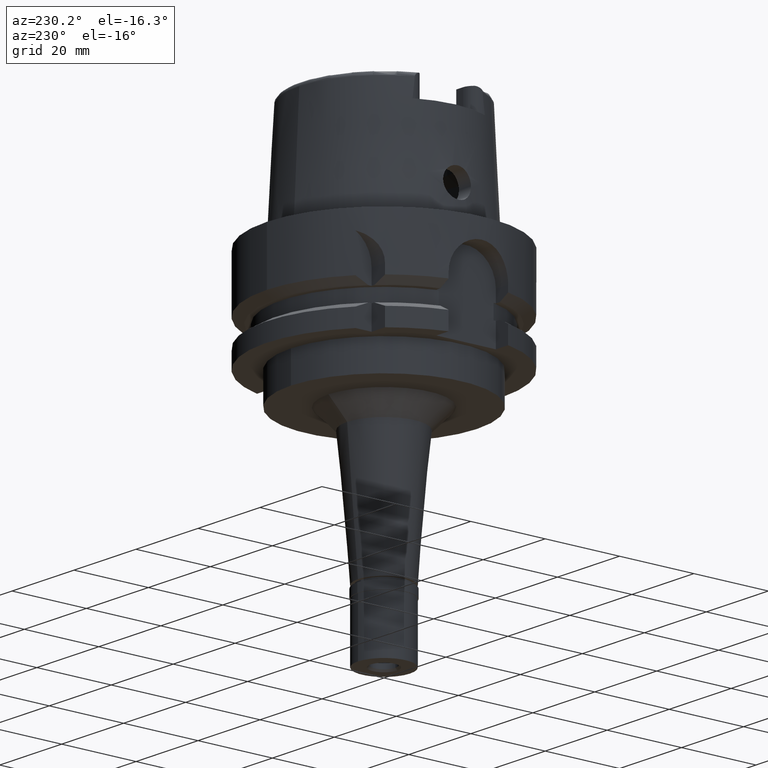
[diagram: clean part render]
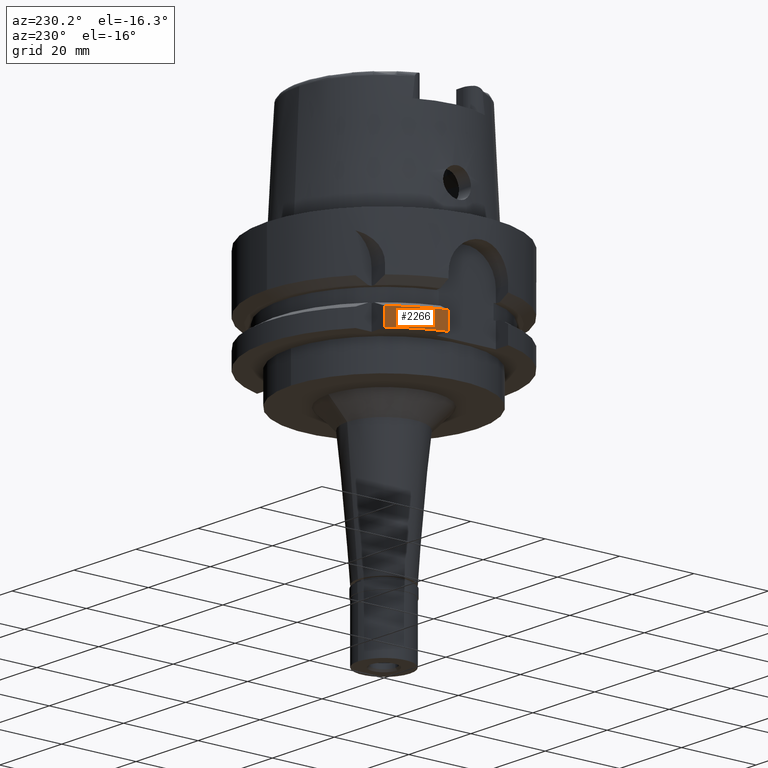
[diagram: same view with one face highlighted and labeled with its STEP entity id]
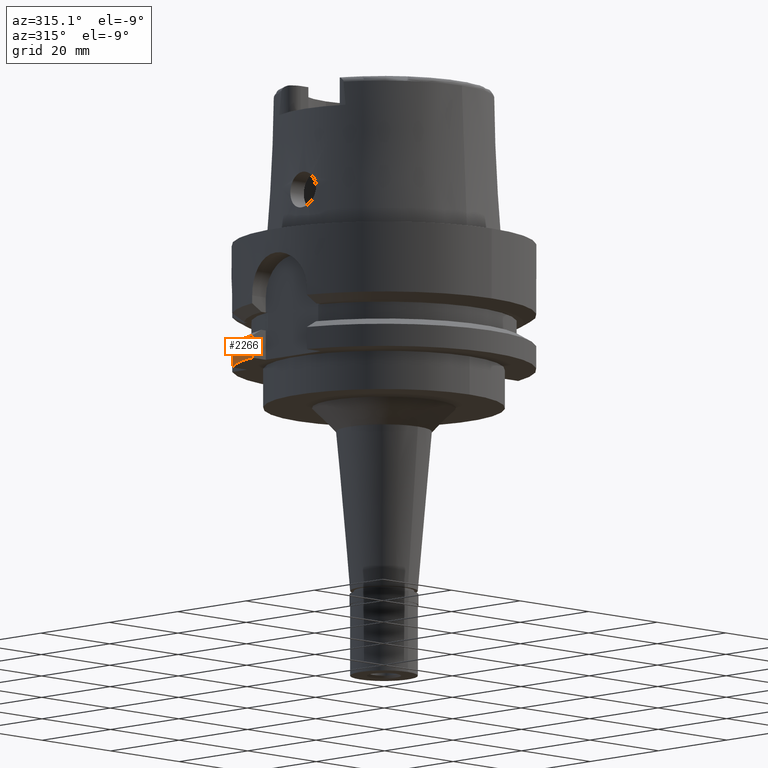
[diagram: same view with one face highlighted and labeled with its STEP entity id]
A machine part, auxiliary view. The second image highlights one B-rep face of the part: STEP entity #2266.
A second angle (auxiliary view) of the same face is appended — the face is thin or edge-on in the first view.
In plain terms, the highlighted cylindrical surface (partial cylindrical patch) has radius 31.5 mm, axis along (0, 0, -1).
Its self-contained STEP definition (entity closure, byte-faithful):
#27 = CIRCLE ( 'NONE', #5524, 31.50000000000000000 ) ;
#38 = EDGE_CURVE ( 'NONE', #5294, #4621, #27, .T. ) ;
#184 = DIRECTION ( 'NONE',  ( 0.0000000000000000000, 0.0000000000000000000, -1.000000000000000000 ) ) ;
#529 = ORIENTED_EDGE ( 'NONE', *, *, #1025, .F. ) ;
#735 = CARTESIAN_POINT ( 'NONE',  ( 0.0000000000000000000, 0.0000000000000000000, 37.90000000000000568 ) ) ;
#1025 = EDGE_CURVE ( 'NONE', #2553, #4621, #2718, .T. ) ;
#1040 = DIRECTION ( 'NONE',  ( -0.9672125547036138915, 0.2539682539683034701, 0.0000000000000000000 ) ) ;
#1367 = CARTESIAN_POINT ( 'NONE',  ( -24.33617572677999874, 20.00001377486999843, -21.37754845807999615 ) ) ;
#1493 = DIRECTION ( 'NONE',  ( -0.7725773665802099233, 0.6349206349206079070, 0.0000000000000000000 ) ) ;
#1667 = VECTOR ( 'NONE', #4282, 1000.000000000000114 ) ;
#1701 = ORIENTED_EDGE ( 'NONE', *, *, #38, .T. ) ;
#1826 = EDGE_CURVE ( 'NONE', #5294, #4066, #2916, .T. ) ;
#1893 = CARTESIAN_POINT ( 'NONE',  ( 0.0000000000000000000, 0.0000000000000000000, -21.37749907476000288 ) ) ;
#2041 = CARTESIAN_POINT ( 'NONE',  ( -30.46719534841000154, 8.000000475102000408, -21.37750338767999736 ) ) ;
#2266 = ADVANCED_FACE ( 'NONE', ( #5446 ), #3298, .T. ) ;
#2446 = DIRECTION ( 'NONE',  ( 0.0000000000000000000, 0.0000000000000000000, -1.000000000000000000 ) ) ;
#2553 = VERTEX_POINT ( 'NONE', #3257 ) ;
#2570 = CARTESIAN_POINT ( 'NONE',  ( -30.46719534841000154, 8.000000475102000408, -21.37750338767999736 ) ) ;
#2684 = DIRECTION ( 'NONE',  ( 0.0000000000000000000, 0.0000000000000000000, 1.000000000000000000 ) ) ;
#2718 = LINE ( 'NONE', #4428, #3899 ) ;
#2916 = LINE ( 'NONE', #2570, #1667 ) ;
#2991 = AXIS2_PLACEMENT_3D ( 'NONE', #4483, #2684, #1493 ) ;
#3117 = CARTESIAN_POINT ( 'NONE',  ( -30.46719547316000032, 8.000000000000000000, -26.00000000000000000 ) ) ;
#3257 = CARTESIAN_POINT ( 'NONE',  ( -24.33618704727619786, 19.99999999999964828, -26.00000000000000000 ) ) ;
#3298 = CYLINDRICAL_SURFACE ( 'NONE', #3780, 31.50000000000000000 ) ;
#3343 = CIRCLE ( 'NONE', #2991, 31.50000000000000711 ) ;
#3780 = AXIS2_PLACEMENT_3D ( 'NONE', #735, #2446, #4160 ) ;
#3899 = VECTOR ( 'NONE', #4486, 1000.000000000000000 ) ;
#3939 = ORIENTED_EDGE ( 'NONE', *, *, #4102, .T. ) ;
#4066 = VERTEX_POINT ( 'NONE', #3117 ) ;
#4102 = EDGE_CURVE ( 'NONE', #2553, #4066, #3343, .T. ) ;
#4160 = DIRECTION ( 'NONE',  ( 0.0000000000000000000, -1.000000000000000000, 0.0000000000000000000 ) ) ;
#4282 = DIRECTION ( 'NONE',  ( -2.698773483974969916E-08, -1.027803698813988339E-07, -0.9999999999999943379 ) ) ;
#4314 = EDGE_LOOP ( 'NONE', ( #3939, #4563, #1701, #529 ) ) ;
#4428 = CARTESIAN_POINT ( 'NONE',  ( -24.33618704727589588, 20.00000000000000000, 37.90000000000000568 ) ) ;
#4483 = CARTESIAN_POINT ( 'NONE',  ( 0.0000000000000000000, 0.0000000000000000000, -26.00000000000000000 ) ) ;
#4486 = DIRECTION ( 'NONE',  ( -0.0000000000000000000, -0.0000000000000000000, 1.000000000000000000 ) ) ;
#4563 = ORIENTED_EDGE ( 'NONE', *, *, #1826, .F. ) ;
#4621 = VERTEX_POINT ( 'NONE', #1367 ) ;
#5294 = VERTEX_POINT ( 'NONE', #2041 ) ;
#5446 = FACE_OUTER_BOUND ( 'NONE', #4314, .T. ) ;
#5524 = AXIS2_PLACEMENT_3D ( 'NONE', #1893, #184, #1040 ) ;